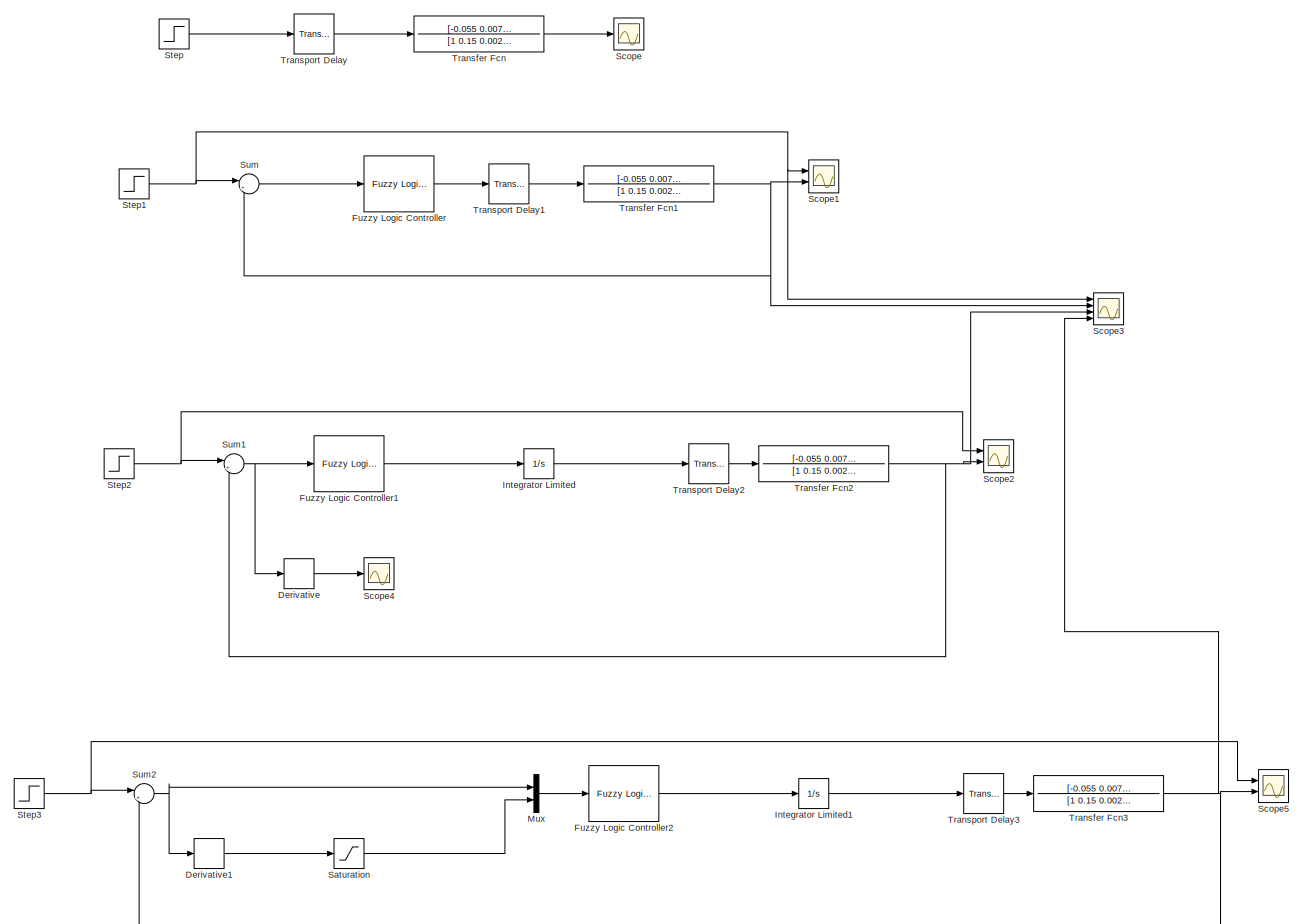
[diagram: root canvas - part 1/1, most of the canvas]
MODEL slx_c4838ad3d9db
KIND model
CONFIG AbsTol = auto
CONFIG EnableMultiTasking = off
CONFIG FixedStep = 1
CONFIG MaxStep = auto
CONFIG MinStep = auto
CONFIG RelTol = 1e-3
CONFIG SampleTimeConstraint = Unconstrained
CONFIG Solver = FixedStepAuto
CONFIG SolverName = FixedStepAuto
CONFIG StartTime = 0.0
CONFIG StopTime = 3600
BLOCK [Derivative] Derivative
BLOCK [Derivative] Derivative1
BLOCK [Reference] Fuzzy Logic Controller  REF=fuzblock/Fuzzy Logic   (lib defined in mdl_858b3b3e7478)
Controller
  NameLocation = left
  Ports = [1, 1]
  SourceBlock = fuzblock/Fuzzy Logic \nController
  SourceProductBaseCode = FL
  SourceType = Fuzzy Inference System
BLOCK [Reference] Fuzzy Logic Controller1  REF=fuzblock/Fuzzy Logic   (lib defined in mdl_858b3b3e7478)
Controller
  Ports = [1, 1]
  SourceBlock = fuzblock/Fuzzy Logic \nController
  SourceProductBaseCode = FL
  SourceType = Fuzzy Inference System
BLOCK [Reference] Fuzzy Logic Controller2  REF=fuzblock/Fuzzy Logic   (lib defined in mdl_858b3b3e7478)
Controller
  Ports = [1, 1]
  SourceBlock = fuzblock/Fuzzy Logic \nController
  SourceProductBaseCode = FL
  SourceType = Fuzzy Inference System
BLOCK [Integrator] Integrator Limited
  LimitOutput = on
  LowerSaturationLimit = -1.2
  Ports = [1, 1]
  UpperSaturationLimit = 1.2
BLOCK [Integrator] Integrator Limited1
  LimitOutput = on
  LowerSaturationLimit = -1.2
  Ports = [1, 1]
  UpperSaturationLimit = 1.2
BLOCK [Mux] Mux
  DisplayOption = bar
  Inputs = 2
  Ports = [2, 1]
BLOCK [Saturate] Saturation
  LowerLimit = -0.18
  UpperLimit = 0.18
BLOCK [Scope] Scope
  Floating = off
  NumInputPorts = 1
  Ports = [1]
  ScopeSpecificationString = Simulink.scopes.TimeScopeBlockCfg('CurrentConfiguration', extmgr.ConfigurationSet(extmgr.Configuration('Core','General UI',true),extmgr.Configuration('Core','Source UI',true),extmgr.Configuration('Sources','WiredSimulink',true),extmgr.Configuration('Visuals','Time Domain',true,'SerializedDisplays',{struct('MinYLimReal','-7.55878','MaxYLimReal','8.02898','YLabelReal','','MinYLimMag','0.00000','MaxY...<+1365ch>
BLOCK [Scope] Scope1
  Floating = off
  NumInputPorts = 2
  Ports = [2]
  ScopeSpecificationString = Simulink.scopes.TimeScopeBlockCfg('CurrentConfiguration', extmgr.ConfigurationSet(extmgr.Configuration('Core','General UI',true),extmgr.Configuration('Core','Source UI',true),extmgr.Configuration('Sources','WiredSimulink',true,'DataLoggingVariableName','ScopeData1'),extmgr.Configuration('Visuals','Time Domain',true,'SerializedDisplays',{struct('MinYLimReal','-2.5','MaxYLimReal','2.5','YLabelReal',...<+1412ch>
BLOCK [Scope] Scope2
  Floating = off
  NumInputPorts = 2
  Ports = [2]
  ScopeSpecificationString = Simulink.scopes.TimeScopeBlockCfg('CurrentConfiguration', extmgr.ConfigurationSet(extmgr.Configuration('Core','General UI',true),extmgr.Configuration('Core','Source UI',true),extmgr.Configuration('Sources','WiredSimulink',true,'DataLoggingVariableName','ScopeData2'),extmgr.Configuration('Visuals','Time Domain',true,'SerializedDisplays',{struct('MinYLimReal','-3.23306','MaxYLimReal','3.10628','YLab...<+1409ch>
BLOCK [Scope] Scope3
  Floating = off
  NumInputPorts = 4
  Ports = [4]
  ScopeSpecificationString = Simulink.scopes.TimeScopeBlockCfg('CurrentConfiguration', extmgr.ConfigurationSet(extmgr.Configuration('Core','General UI',true),extmgr.Configuration('Core','Source UI',true),extmgr.Configuration('Sources','WiredSimulink',true,'DataLoggingVariableName','ScopeData3'),extmgr.Configuration('Visuals','Time Domain',true,'SerializedDisplays',{struct('MinYLimReal','-3.30843','MaxYLimReal','3.18615','YLab...<+1530ch>
BLOCK [Scope] Scope4
  Floating = off
  NumInputPorts = 1
  Ports = [1]
  ScopeSpecificationString = Simulink.scopes.TimeScopeBlockCfg('CurrentConfiguration', extmgr.ConfigurationSet(extmgr.Configuration('Core','General UI',true),extmgr.Configuration('Core','Source UI',true),extmgr.Configuration('Sources','WiredSimulink',true,'DataLoggingVariableName','ScopeData4'),extmgr.Configuration('Visuals','Time Domain',true,'SerializedDisplays',{struct('MinYLimReal','-3.93787','MaxYLimReal','0.5','YLabelRe...<+1462ch>
BLOCK [Scope] Scope5
  Floating = off
  NumInputPorts = 2
  Ports = [2]
  ScopeSpecificationString = Simulink.scopes.TimeScopeBlockCfg('CurrentConfiguration', extmgr.ConfigurationSet(extmgr.Configuration('Core','General UI',true),extmgr.Configuration('Core','Source UI',true),extmgr.Configuration('Sources','WiredSimulink',true,'DataLoggingVariableName','ScopeData5'),extmgr.Configuration('Visuals','Time Domain',true,'SerializedDisplays',{struct('MinYLimReal','-3.30843','MaxYLimReal','3.18615','YLab...<+1409ch>
BLOCK [Step] Step
  After = -2
  Before = 2
  SampleTime = 0
  Time = 1000
BLOCK [Step] Step1
  After = -2
  Before = 2
  SampleTime = 0
  Time = 1000
BLOCK [Step] Step2
  After = -2
  Before = 2
  SampleTime = 0
  Time = 1000
BLOCK [Step] Step3
  After = -2
  Before = 2
  SampleTime = 0
  Time = 1000
BLOCK [Sum] Sum
  Inputs = |+-
  Ports = [2, 1]
BLOCK [Sum] Sum1
  Inputs = |+-
  Ports = [2, 1]
BLOCK [Sum] Sum2
  Inputs = |+-
  Ports = [2, 1]
BLOCK [TransferFcn] Transfer Fcn
  Denominator = [1 0.15 0.0025]
  Numerator = [-0.055 0.0075]
BLOCK [TransferFcn] Transfer Fcn1
  Denominator = [1 0.15 0.0025]
  Numerator = [-0.055 0.0075]
BLOCK [TransferFcn] Transfer Fcn2
  Denominator = [1 0.15 0.0025]
  Numerator = [-0.055 0.0075]
BLOCK [TransferFcn] Transfer Fcn3
  Denominator = [1 0.15 0.0025]
  Numerator = [-0.055 0.0075]
BLOCK [TransportDelay] Transport Delay
  DelayTime = 3.6
  Ports = [1, 1]
BLOCK [TransportDelay] Transport Delay1
  DelayTime = 3.6
  Ports = [1, 1]
BLOCK [TransportDelay] Transport Delay2
  DelayTime = 3.6
  Ports = [1, 1]
BLOCK [TransportDelay] Transport Delay3
  DelayTime = 3.6
  Ports = [1, 1]
LINE Derivative1:1 -> Saturation:1
LINE Derivative:1 -> Scope4:1
LINE Fuzzy Logic Controller1:1 -> Integrator Limited:1
LINE Fuzzy Logic Controller2:1 -> Integrator Limited1:1
LINE Fuzzy Logic Controller:1 -> Transport Delay1:1
LINE Integrator Limited1:1 -> Transport Delay3:1
LINE Integrator Limited:1 -> Transport Delay2:1
LINE Mux:1 -> Fuzzy Logic Controller2:1
LINE Saturation:1 -> Mux:2
NET Step1:1 -> Scope1:1, Scope3:1, Sum:1
NET Step2:1 -> Scope2:1, Sum1:1
NET Step3:1 -> Scope5:1, Sum2:1
LINE Step:1 -> Transport Delay:1
NET Sum1:1 -> Derivative:1, Fuzzy Logic Controller1:1
NET Sum2:1 -> Derivative1:1, Mux:1
LINE Sum:1 -> Fuzzy Logic Controller:1
NET Transfer Fcn1:1 -> Scope1:2, Scope3:2, Sum:2
NET Transfer Fcn2:1 -> Scope2:2, Scope3:3, Sum1:2
NET Transfer Fcn3:1 -> Scope3:4, Scope5:2, Sum2:2
LINE Transfer Fcn:1 -> Scope:1
LINE Transport Delay1:1 -> Transfer Fcn1:1
LINE Transport Delay2:1 -> Transfer Fcn2:1
LINE Transport Delay3:1 -> Transfer Fcn3:1
LINE Transport Delay:1 -> Transfer Fcn:1
note: NET lines group one-source signal fan-out (src -> all destinations, sorted); 1:1 wires keep LINE
